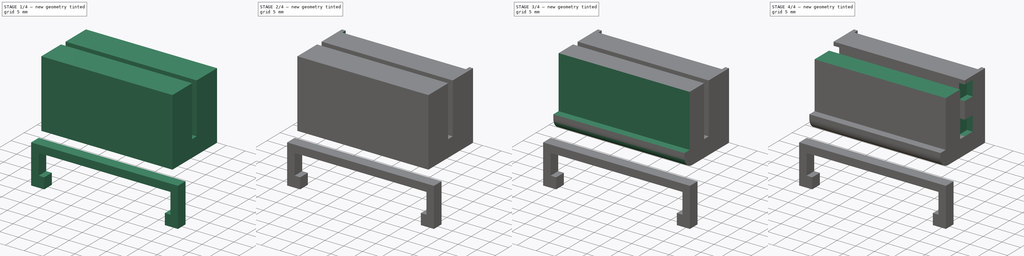
[diagram: build sequence overview — one tinted view per stage of 4, left to right]
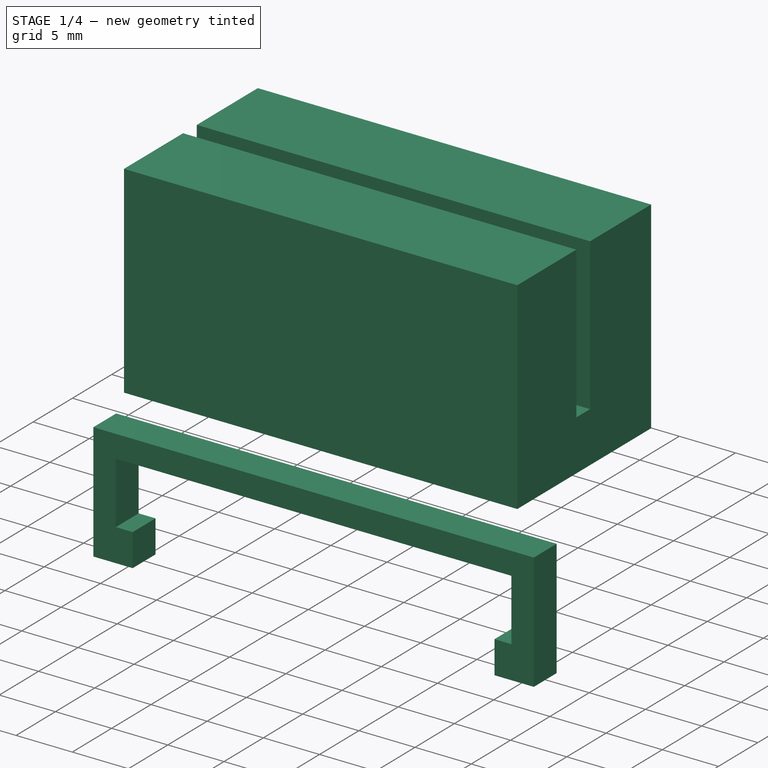
[diagram: stage 1 of 4 — iso view after this stage's code; geometry added in this stage tinted green]
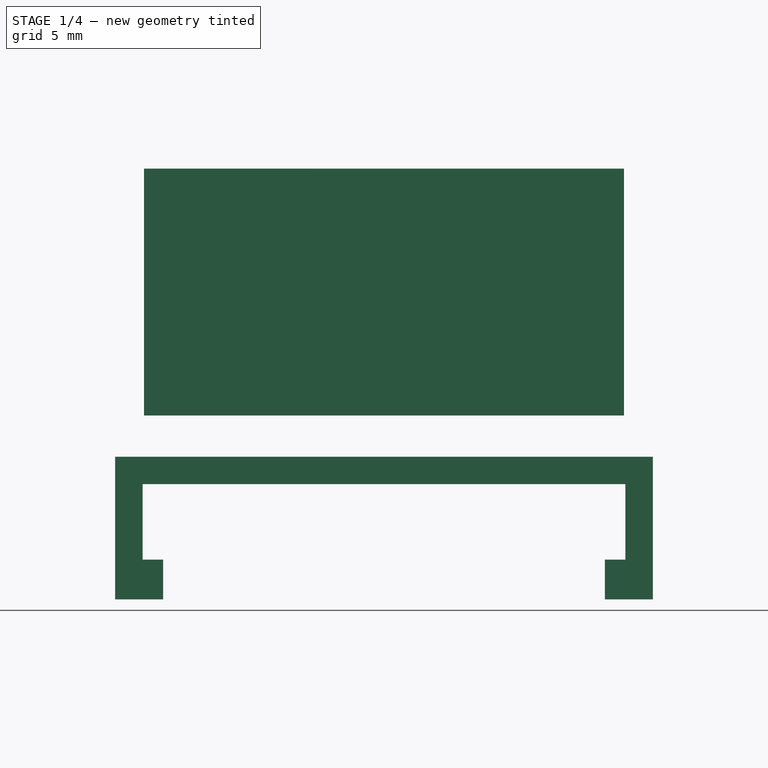
[diagram: stage 1 of 4 — front view after this stage's code; geometry added in this stage tinted green]
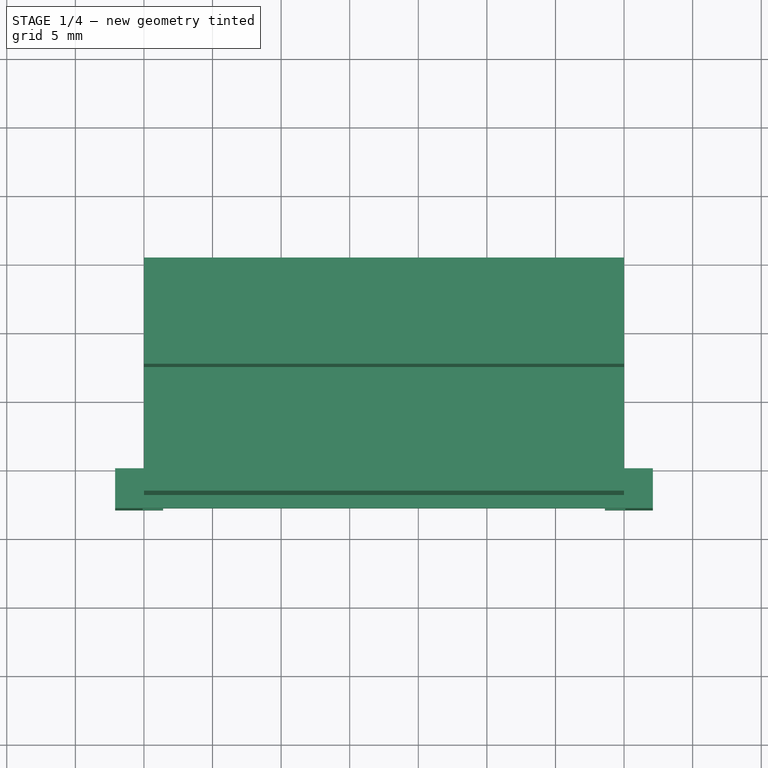
[diagram: stage 1 of 4 — top view after this stage's code; geometry added in this stage tinted green]
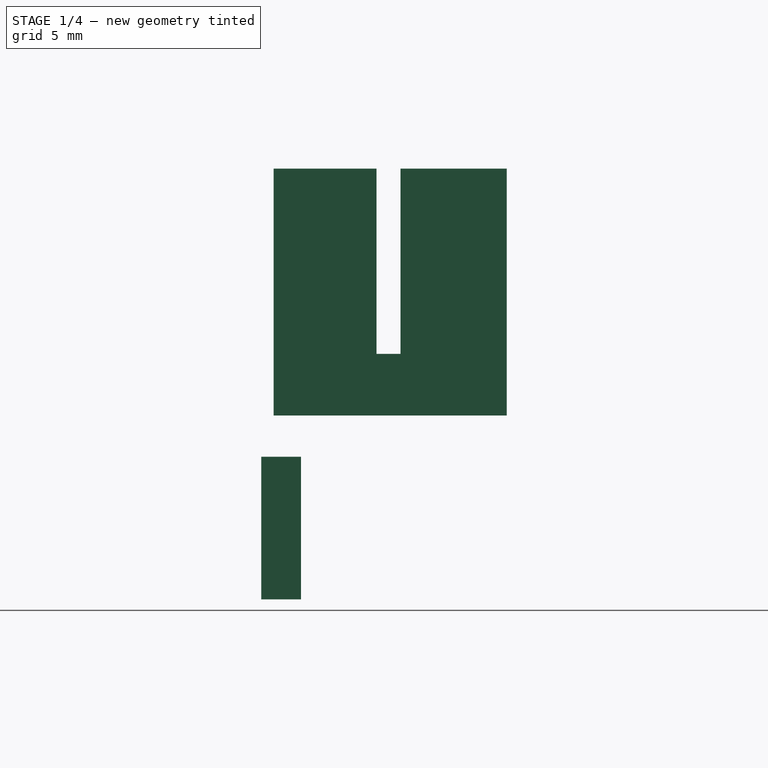
[diagram: stage 1 of 4 — right view after this stage's code; geometry added in this stage tinted green]
FCSTD DOCUMENT  (FreeCAD 0.21R33771 (Git))
Label: pivic_vic20_connector_adapter
License: All rights reserved
LicenseURL: http://en.wikipedia.org/wiki/All_rights_reserved
objects: Sketcher::SketchObject×12, PartDesign::Pocket×9, PartDesign::Plane×5, PartDesign::Pad×3, PartDesign::Body×2, PartDesign::Fillet×1
note: 45 computed .brp shape members not serialized (recipe doc carries the construction recipe); baked Part::Feature solids carry a one-line shape summary decoded from their .brp

FEATURE [Sketcher::SketchObject] Sketch
  FullyConstrained = true
  MapMode = 5
  Support = -> [XY_Plane]
  sketch-geometry (4):
    g0: LineSegment StartX=0 StartY=-2 StartZ=0 EndX=35 EndY=-2 EndZ=0
    g1: LineSegment StartX=35 StartY=-2 StartZ=0 EndX=35 EndY=15 EndZ=0
    g2: LineSegment StartX=35 StartY=15 StartZ=0 EndX=0 EndY=15 EndZ=0
    g3: LineSegment StartX=0 StartY=15 StartZ=0 EndX=0 EndY=-2 EndZ=0
  constraints (12):
    c: Coincident(g0,g1)
    c: Coincident(g1,g2)
    c: Coincident(g2,g3)
    c: Coincident(g3,g0)
    c: Horizontal(g0)
    c: Horizontal(g2)
    c: Vertical(g1)
    c: Vertical(g3)
    c: DistanceX(g2,g2) = 35
    c: DistanceY(g1,g1) = 17
    c: DistanceY(g0,g-1) = 2
    c: PointOnObject(g2,g-2)
FEATURE [PartDesign::Pad] Pad  label="PadMain"
  Direction = (0,0,1)
  Length = 18
  Length2 = 10
  Profile = -> Sketch
  ReferenceAxis = -> Sketch [N_Axis]
  Type = 0
FEATURE [PartDesign::Plane] DatumPlane  label="PlaneRear"
  Length = 70.9545
  MapMode = 5
  Placement = pos=(0,0,18) rot=(0,0,1;0rad)
  ResizeMode = 0
  Support = -> [Pad]
  Width = 60.9545
FEATURE [Sketcher::SketchObject] Sketch001
  FullyConstrained = true
  MapMode = 5
  Placement = pos=(0,0,18) rot=(0,0,1;0rad)
  Support = -> [DatumPlane]
  sketch-geometry (4):
    g0: LineSegment StartX=0 StartY=7.25 StartZ=0 EndX=35 EndY=7.25 EndZ=0
    g1: LineSegment StartX=35 StartY=7.25 StartZ=0 EndX=35 EndY=5.5 EndZ=0
    g2: LineSegment StartX=35 StartY=5.5 StartZ=0 EndX=0 EndY=5.5 EndZ=0
    g3: LineSegment StartX=0 StartY=5.5 StartZ=0 EndX=0 EndY=7.25 EndZ=0
  constraints (12):
    c: Coincident(g0,g1)
    c: Coincident(g1,g2)
    c: Coincident(g2,g3)
    c: Coincident(g3,g0)
    c: Horizontal(g0)
    c: Horizontal(g2)
    c: Vertical(g1)
    c: Vertical(g3)
    c: PointOnObject(g0,g-2)
    c: DistanceY(g1,g1) = 1.75
    c: DistanceX(g0,g0) = 35
    c: DistanceY(g-1,g2) = 5.5
FEATURE [PartDesign::Pocket] Pocket  label="PocketSlot"
  BaseFeature = -> Pad
  Direction = (0,0,-1)
  Length = 13.5
  Length2 = 5
  Profile = -> Sketch001
  ReferenceAxis = -> Sketch001 [N_Axis]
  Type = 0
FEATURE [PartDesign::Body] Body
  Group = -> [Sketch,Pad,DatumPlane,Sketch001,Pocket,DatumPlane001,Sketch002,Pocket001,Sketch003,Pocket002,DatumPlane002,Sketch004,Pad001,Sketch005,Pocket003,Sketch006,Pocket004,Sketch007,Pocket005,Fillet,Sketch008,Pocket006,DatumPlane003,Sketch009,Pocket007,DatumPlane004,Sketch010,Pocket008]
  Origin = -> Origin
  Tip = -> Pocket008
FEATURE [Sketcher::SketchObject] Sketch011
  FullyConstrained = true
  MapMode = 5
  Placement = pos=(0,0,0) rot=(1,0,0;1.5708rad)
  Support = -> [XZ_Plane]
  sketch-geometry (12):
    g0: LineSegment StartX=-0.1 StartY=-5 StartZ=0 EndX=35.1 EndY=-5 EndZ=0
    g1: LineSegment StartX=35.1 StartY=-5 StartZ=0 EndX=35.1 EndY=-10.5 EndZ=0
    g2: LineSegment StartX=35.1 StartY=-10.5 StartZ=0 EndX=33.6 EndY=-10.5 EndZ=0
    g3: LineSegment StartX=33.6 StartY=-10.5 StartZ=0 EndX=33.6 EndY=-13.4 EndZ=0
    g4: LineSegment StartX=33.6 StartY=-13.4 StartZ=0 EndX=37.1 EndY=-13.4 EndZ=0
    g5: LineSegment StartX=37.1 StartY=-13.4 StartZ=0 EndX=37.1 EndY=-3 EndZ=0
    g6: LineSegment StartX=37.1 StartY=-3 StartZ=0 EndX=-2.1 EndY=-3 EndZ=0
    g7: LineSegment StartX=-2.1 StartY=-3 StartZ=0 EndX=-2.1 EndY=-13.4 EndZ=0
    g8: LineSegment StartX=-2.1 StartY=-13.4 StartZ=0 EndX=1.4 EndY=-13.4 EndZ=0
    g9: LineSegment StartX=1.4 StartY=-13.4 StartZ=0 EndX=1.4 EndY=-10.5 EndZ=0
    g10: LineSegment StartX=1.4 StartY=-10.5 StartZ=0 EndX=-0.1 EndY=-10.5 EndZ=0
    g11: LineSegment StartX=-0.1 StartY=-10.5 StartZ=0 EndX=-0.1 EndY=-5 EndZ=0
  constraints (36):
    c: Coincident(g1,g0)
    c: Vertical(g1)
    c: Coincident(g2,g1)
    c: Horizontal(g2)
    c: Coincident(g3,g2)
    c: Vertical(g3)
    c: Coincident(g4,g3)
    c: Horizontal(g4)
    c: Coincident(g5,g4)
    c: Vertical(g5)
    c: Coincident(g6,g5)
    c: Horizontal(g6)
    c: Coincident(g7,g6)
    c: Vertical(g7)
    c: Coincident(g8,g7)
    c: Horizontal(g8)
    c: Coincident(g9,g8)
    c: Vertical(g9)
    c: Coincident(g10,g9)
    c: Horizontal(g10)
    c: DistanceX(g0,g0) = 35.2
    c: DistanceY(g3,g3) = 2.9
    c: DistanceX(g2,g2) = 1.5
    c: DistanceX(g1,g4) = 2
    c: DistanceY(g0,g5) = 2
    c: DistanceY(g1,g1) = 5.5
    c: Equal(g9,g3)
    c: Equal(g10,g2)
    c: DistanceX(g7,g10) = 2
    c: Coincident(g11,g10)
    c: Coincident(g11,g0)
    c: DistanceY(g10,g0) = 5.5
    c: Horizontal(g0)
    c: DistanceY(g6,g-1) = 3
    c: DistanceX(g6,g-1) = 2.1
    c: Vertical(g11)
FEATURE [PartDesign::Pad] Pad002
  Direction = (0,-1,-2e-16)
  Length = 2.9
  Length2 = 10
  Placement = pos=(0,0,0) rot=(1,0,0;1.5708rad)
  Profile = -> Sketch011
  ReferenceAxis = -> Sketch011 [N_Axis]
  Type = 0
FEATURE [PartDesign::Body] Body001  label="BodyLatch"
  Group = -> [Sketch011,Pad002]
  Origin = -> Origin001
  Tip = -> Pad002
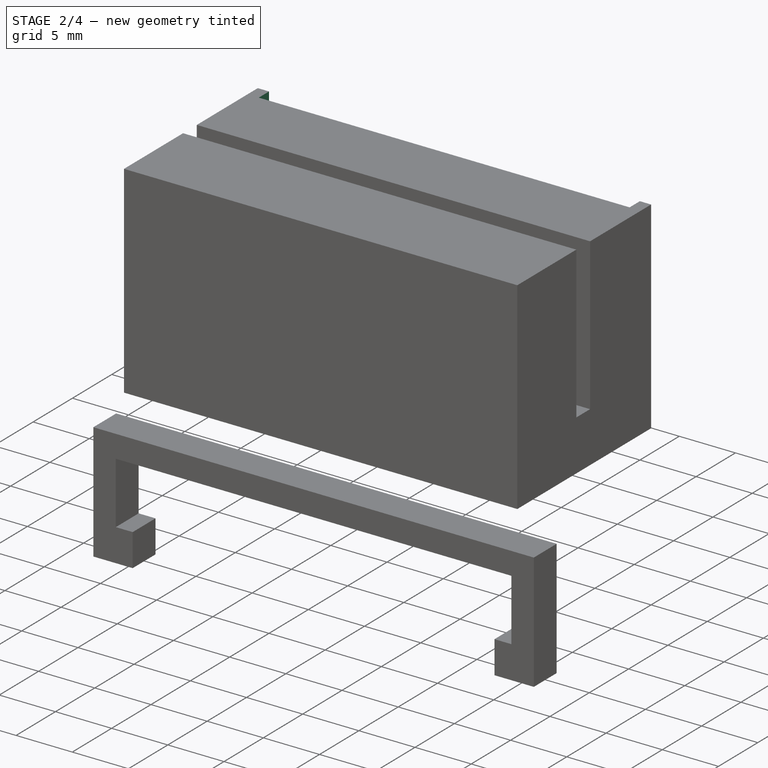
[diagram: stage 2 of 4 — iso view after this stage's code; geometry added in this stage tinted green]
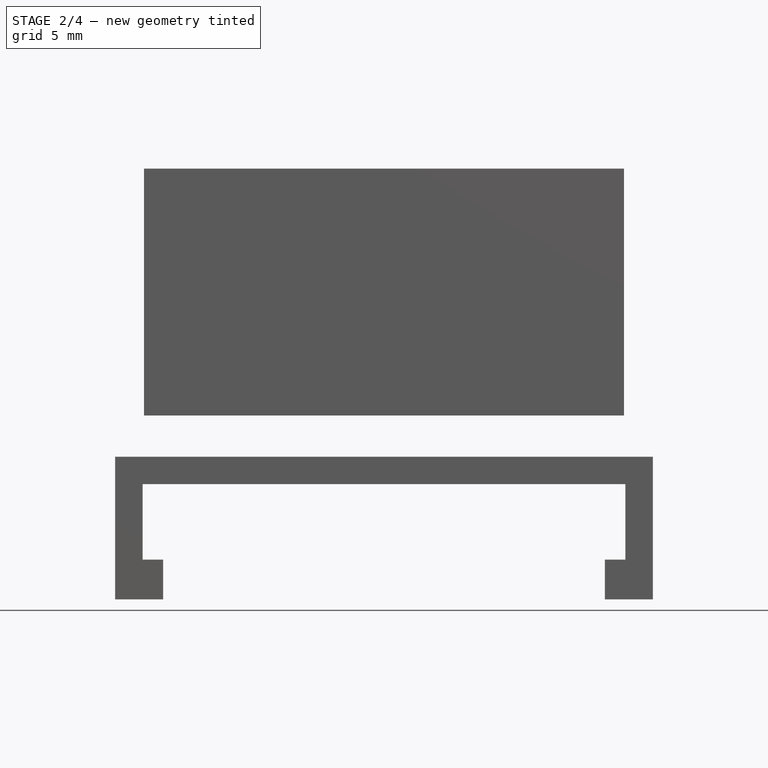
[diagram: stage 2 of 4 — front view after this stage's code; geometry added in this stage tinted green]
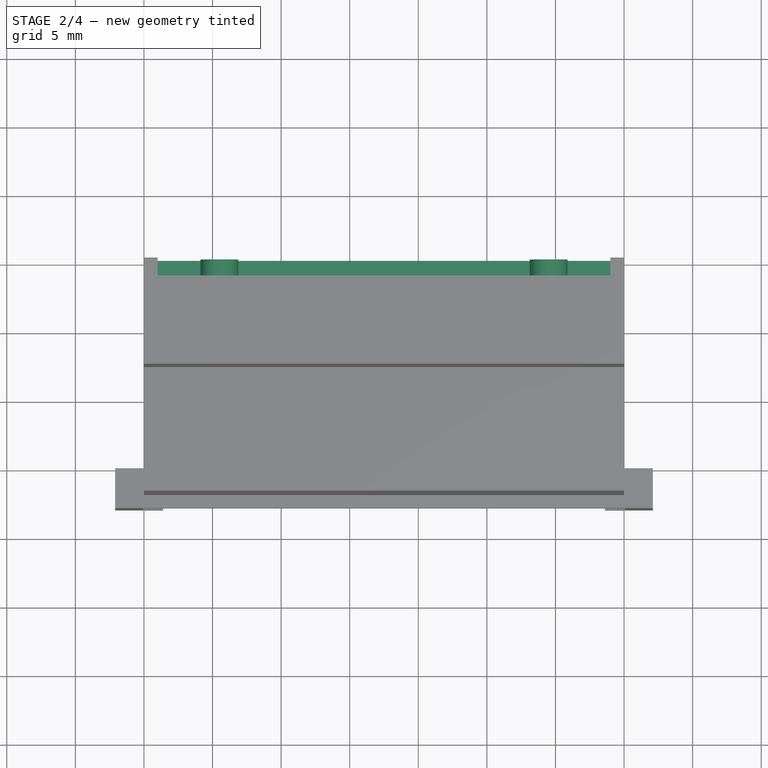
[diagram: stage 2 of 4 — top view after this stage's code; geometry added in this stage tinted green]
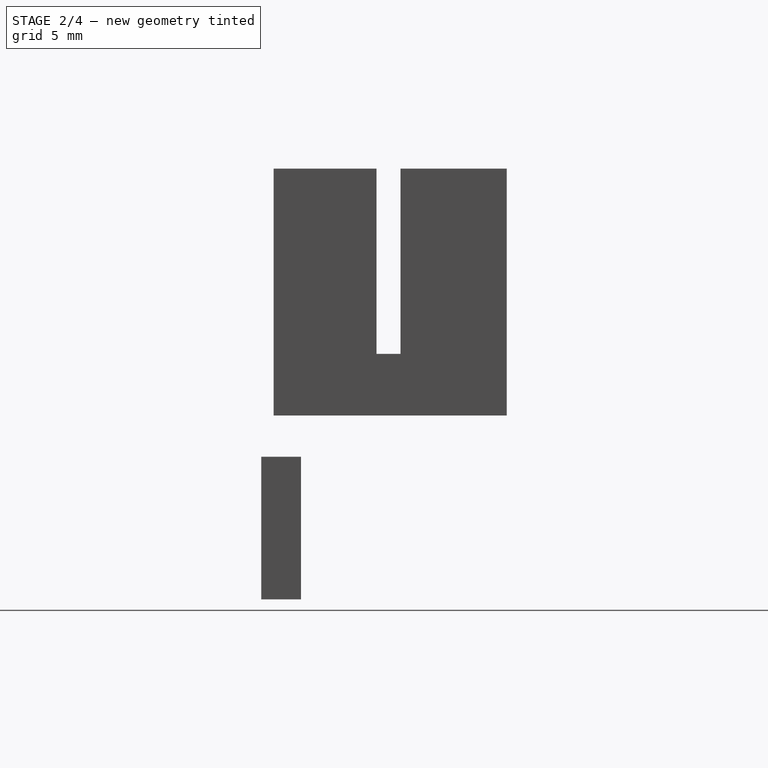
[diagram: stage 2 of 4 — right view after this stage's code; geometry added in this stage tinted green]
FEATURE [PartDesign::Plane] DatumPlane001  label="PlaneFront"
  Length = 70.9545
  MapMode = 5
  Placement = pos=(0,0,0) rot=(1,0,0;3.14159rad)
  ResizeMode = 0
  Support = -> [Pocket]
  Width = 60.9545
FEATURE [Sketcher::SketchObject] Sketch002
  FullyConstrained = true
  MapMode = 5
  Placement = pos=(0,0,0) rot=(1,0,0;3.14159rad)
  Support = -> [DatumPlane001]
  sketch-geometry (6):
    g0: LineSegment StartX=11.5 StartY=-13.7 StartZ=0 EndX=23.5 EndY=-13.7 EndZ=0
    g1: LineSegment StartX=25 StartY=-11.7 StartZ=0 EndX=25 EndY=-7.7 EndZ=0
    g2: LineSegment StartX=25 StartY=-7.7 StartZ=0 EndX=10 EndY=-7.7 EndZ=0
    g3: LineSegment StartX=10 StartY=-7.7 StartZ=0 EndX=10 EndY=-11.7 EndZ=0
    g4: LineSegment StartX=10 StartY=-11.7 StartZ=0 EndX=11.5 EndY=-13.7 EndZ=0
    g5: LineSegment StartX=25 StartY=-11.7 StartZ=0 EndX=23.5 EndY=-13.7 EndZ=0
  constraints (18):
    c: Coincident(g1,g2)
    c: Coincident(g2,g3)
    c: Horizontal(g0)
    c: Horizontal(g2)
    c: Vertical(g1)
    c: Vertical(g3)
    c: DistanceX(g2,g2) = 15
    c: DistanceX(g0,g0) = 12
    c: DistanceY(g1,g1) = 4
    c: DistanceY(g0,g1) = 6
    c: Equal(g1,g3)
    c: Coincident(g4,g3)
    c: Coincident(g4,g0)
    c: Coincident(g5,g1)
    c: Coincident(g5,g0)
    c: DistanceX(g3,g0) = 1.5
    c: DistanceY(g2,g-1) = 7.7
    c: DistanceX(g-1,g2) = 10
FEATURE [PartDesign::Pocket] Pocket001  label="PocketConnector"
  BaseFeature = -> Pocket
  Direction = (0,0,1)
  Length = 15
  Length2 = 5
  Profile = -> Sketch002
  ReferenceAxis = -> Sketch002 [N_Axis]
  Type = 0
FEATURE [Sketcher::SketchObject] Sketch003
  FullyConstrained = true
  MapMode = 5
  Placement = pos=(0,0,18) rot=(0,0,1;0rad)
  Support = -> [DatumPlane]
  sketch-geometry (4):
    g0: LineSegment StartX=1 StartY=15 StartZ=0 EndX=34 EndY=15 EndZ=0
    g1: LineSegment StartX=34 StartY=15 StartZ=0 EndX=34 EndY=13.7 EndZ=0
    g2: LineSegment StartX=34 StartY=13.7 StartZ=0 EndX=1 EndY=13.7 EndZ=0
    g3: LineSegment StartX=1 StartY=13.7 StartZ=0 EndX=1 EndY=15 EndZ=0
  constraints (12):
    c: Coincident(g0,g1)
    c: Coincident(g1,g2)
    c: Coincident(g2,g3)
    c: Coincident(g3,g0)
    c: Horizontal(g0)
    c: Horizontal(g2)
    c: Vertical(g1)
    c: Vertical(g3)
    c: DistanceX(g0,g0) = 33
    c: DistanceY(g-1,g0) = 15
    c: DistanceY(g1,g1) = 1.3
    c: DistanceX(g-1,g2) = 1
FEATURE [PartDesign::Pocket] Pocket002  label="PocketPCB"
  BaseFeature = -> Pocket001
  Direction = (0,0,-1)
  Length = 14
  Length2 = 5
  Profile = -> Sketch003
  ReferenceAxis = -> Sketch003 [N_Axis]
  Type = 0
FEATURE [PartDesign::Plane] DatumPlane002  label="PlanePCB"
  Length = 70.9545
  MapMode = 5
  Placement = pos=(0,15,0) rot=(0,0.707107,0.707107;3.14159rad)
  ResizeMode = 0
  Support = -> [Pocket002]
  Width = 60.9545
FEATURE [Sketcher::SketchObject] Sketch004
  FullyConstrained = true
  MapMode = 5
  Placement = pos=(0,15,0) rot=(0,0.707107,0.707107;3.14159rad)
  Support = -> [DatumPlane002]
  sketch-geometry (3):
    g0: Circle CenterX=-29.5 CenterY=9 CenterZ=0 NormalX=0 NormalY=0 NormalZ=1 AngleXU=0 Radius=1.375
    g1: Circle CenterX=-5.5 CenterY=9 CenterZ=0 NormalX=0 NormalY=0 NormalZ=1 AngleXU=0 Radius=1.375
    g2: GeomPoint X=-17.5 Y=9 Z=0
  constraints (8):
    c: Diameter(g0) = 2.75
    c: Equal(g0,g1)
    c: DistanceX(g0,g1) = 24
    c: Horizontal(g0,g1)
    c: DistanceY(g-1,g1) = 9
    c: DistanceX(g0,g2) = 12
    c: Horizontal(g0,g2)
    c: DistanceX(g2,g-1) = 17.5
FEATURE [PartDesign::Pad] Pad001  label="PadHolders"
  BaseFeature = -> Pocket002
  Direction = (0,1,-2e-16)
  Length = 1.5
  Length2 = 10
  Profile = -> Sketch004
  ReferenceAxis = -> Sketch004 [N_Axis]
  Reversed = true
  Type = 0
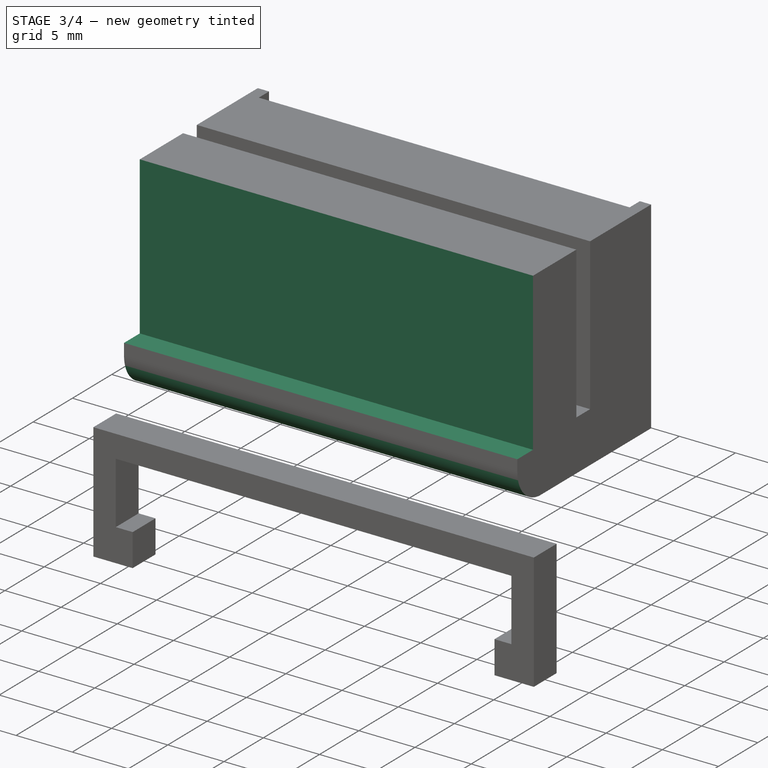
[diagram: stage 3 of 4 — iso view after this stage's code; geometry added in this stage tinted green]
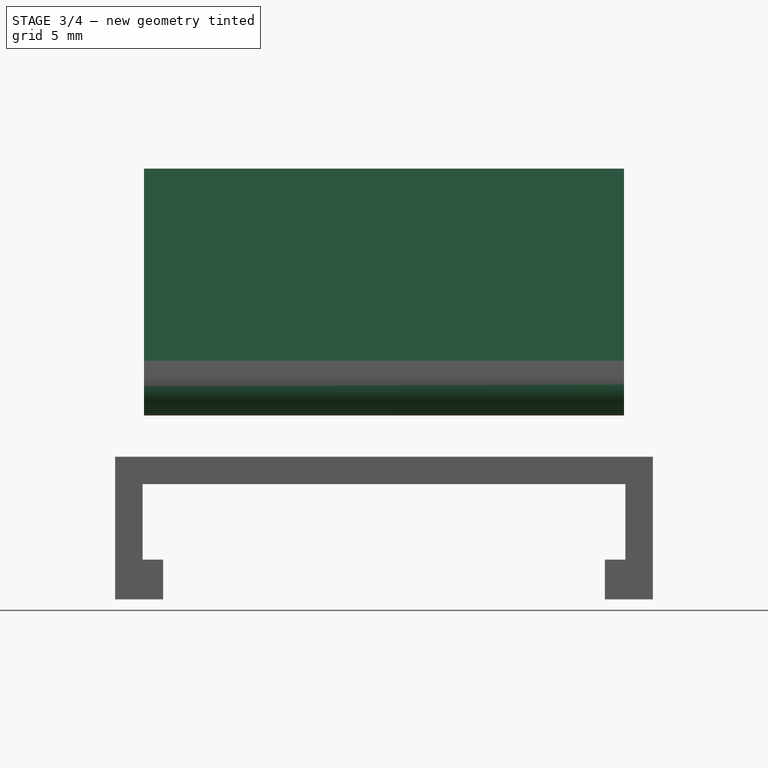
[diagram: stage 3 of 4 — front view after this stage's code; geometry added in this stage tinted green]
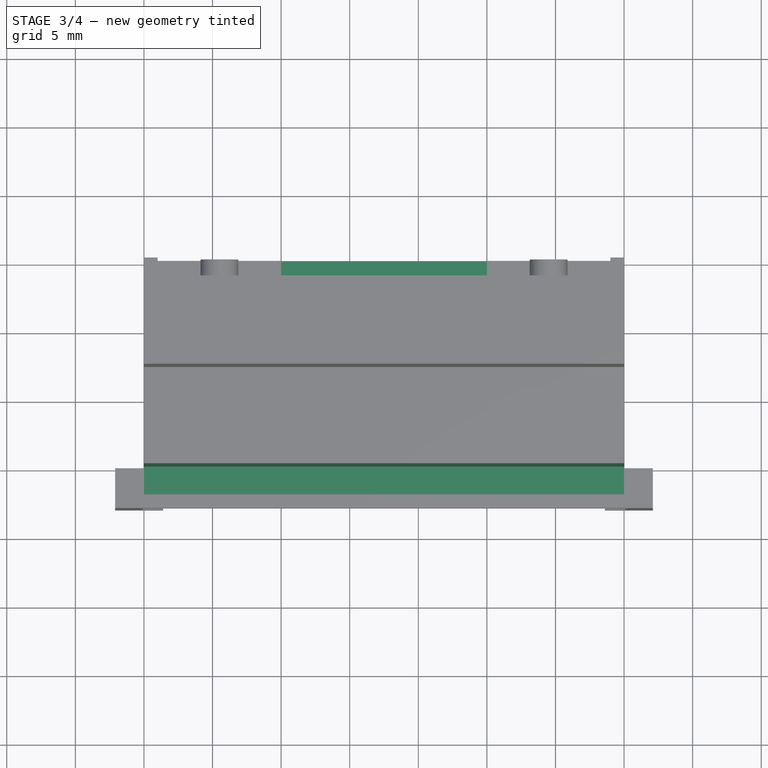
[diagram: stage 3 of 4 — top view after this stage's code; geometry added in this stage tinted green]
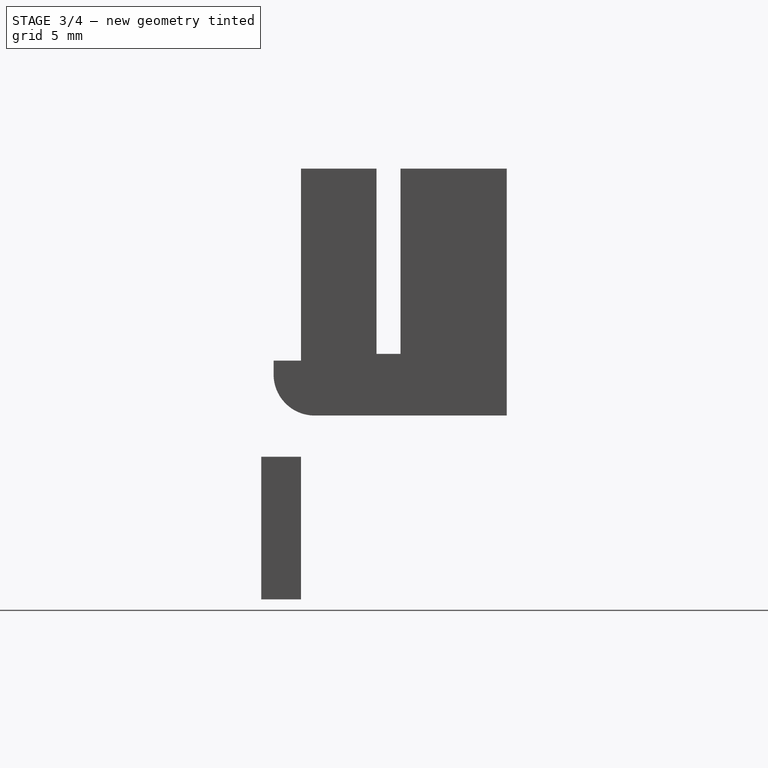
[diagram: stage 3 of 4 — right view after this stage's code; geometry added in this stage tinted green]
FEATURE [Sketcher::SketchObject] Sketch005
  FullyConstrained = true
  MapMode = 5
  Placement = pos=(0,15,0) rot=(0,0.707107,0.707107;3.14159rad)
  Support = -> [DatumPlane002]
  sketch-geometry (5):
    g0: LineSegment StartX=-25 StartY=15 StartZ=0 EndX=-10 EndY=15 EndZ=0
    g1: LineSegment StartX=-10 StartY=15 StartZ=0 EndX=-10 EndY=3 EndZ=0
    g2: LineSegment StartX=-10 StartY=3 StartZ=0 EndX=-25 EndY=3 EndZ=0
    g3: LineSegment StartX=-25 StartY=3 StartZ=0 EndX=-25 EndY=15 EndZ=0
    g4: GeomPoint X=-17.5 Y=3 Z=0
  constraints (13):
    c: Coincident(g0,g1)
    c: Coincident(g1,g2)
    c: Coincident(g2,g3)
    c: Coincident(g3,g0)
    c: Horizontal(g0)
    c: Horizontal(g2)
    c: Vertical(g1)
    c: Vertical(g3)
    c: DistanceX(g0,g0) = 15
    c: Symmetric(g2,g1,g4)
    c: DistanceX(g4,g-1) = 17.5
    c: DistanceY(g-1,g1) = 3
    c: DistanceY(g1,g1) = 12
FEATURE [PartDesign::Pocket] Pocket003  label="PocketRoom"
  BaseFeature = -> Pad001
  Direction = (0,-1,2e-16)
  Length = 4
  Length2 = 5
  Profile = -> Sketch005
  ReferenceAxis = -> Sketch005 [N_Axis]
  Type = 0
FEATURE [Sketcher::SketchObject] Sketch006
  FullyConstrained = true
  MapMode = 5
  Placement = pos=(0,0,18) rot=(0,0,1;0rad)
  Support = -> [DatumPlane]
  sketch-geometry (4):
    g0: LineSegment StartX=0 StartY=0 StartZ=0 EndX=35 EndY=0 EndZ=0
    g1: LineSegment StartX=35 StartY=0 StartZ=0 EndX=35 EndY=-2 EndZ=0
    g2: LineSegment StartX=35 StartY=-2 StartZ=0 EndX=0 EndY=-2 EndZ=0
    g3: LineSegment StartX=0 StartY=-2 StartZ=0 EndX=0 EndY=0 EndZ=0
  constraints (11):
    c: Coincident(g0,g1)
    c: Coincident(g1,g2)
    c: Coincident(g2,g3)
    c: Coincident(g3,g0)
    c: Horizontal(g0)
    c: Horizontal(g2)
    c: Vertical(g1)
    c: Vertical(g3)
    c: Coincident(g0,g-1)
    c: DistanceX(g2,g2) = 35
    c: DistanceY(g1,g1) = 2
FEATURE [PartDesign::Pocket] Pocket004  label="PocketUndercut"
  BaseFeature = -> Pocket003
  Direction = (0,0,-1)
  Length = 14
  Length2 = 5
  Profile = -> Sketch006
  ReferenceAxis = -> Sketch006 [N_Axis]
  Type = 0
FEATURE [Sketcher::SketchObject] Sketch007
  FullyConstrained = true
  MapMode = 5
  Placement = pos=(0,15,0) rot=(0,0.707107,0.707107;3.14159rad)
  Support = -> [DatumPlane002]
  sketch-geometry (5):
    g0: LineSegment StartX=-26.5 StartY=4 StartZ=0 EndX=-8.5 EndY=4 EndZ=0
    g1: LineSegment StartX=-8.5 StartY=4 StartZ=0 EndX=-8.5 EndY=18 EndZ=0
    g2: LineSegment StartX=-8.5 StartY=18 StartZ=0 EndX=-26.5 EndY=18 EndZ=0
    g3: LineSegment StartX=-26.5 StartY=18 StartZ=0 EndX=-26.5 EndY=4 EndZ=0
    g4: GeomPoint X=-17.5 Y=4 Z=0
  constraints (13):
    c: Coincident(g0,g1)
    c: Coincident(g1,g2)
    c: Coincident(g2,g3)
    c: Coincident(g3,g0)
    c: Horizontal(g0)
    c: Horizontal(g2)
    c: Vertical(g1)
    c: Vertical(g3)
    c: Symmetric(g0,g0,g4)
    c: DistanceX(g4,g-1) = 17.5
    c: DistanceX(g2,g2) = 18
    c: DistanceY(g3,g3) = 14
    c: DistanceY(g-1,g0) = 4
FEATURE [PartDesign::Pocket] Pocket005  label="PocketClearance"
  BaseFeature = -> Pocket004
  Direction = (0,-1,2e-16)
  Length = 0.5
  Length2 = 5
  Profile = -> Sketch007
  ReferenceAxis = -> Sketch007 [N_Axis]
  Type = 0
FEATURE [PartDesign::Fillet] Fillet
  Base = -> Pocket005 [Edge1]
  BaseFeature = -> Pocket005
  Radius = 3
  SupportTransform = false
  UseAllEdges = false
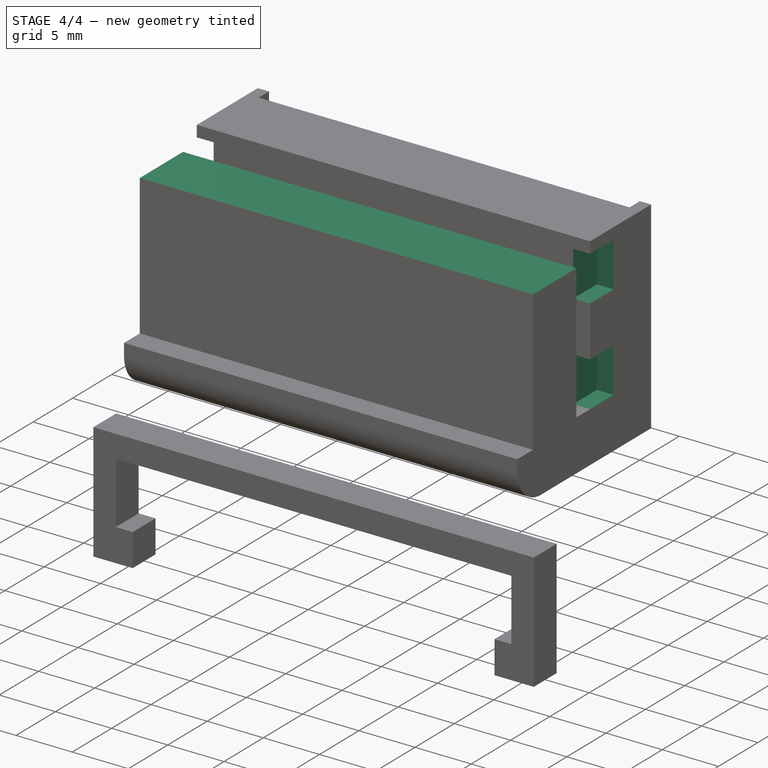
[diagram: stage 4 of 4 — iso view after this stage's code; geometry added in this stage tinted green]
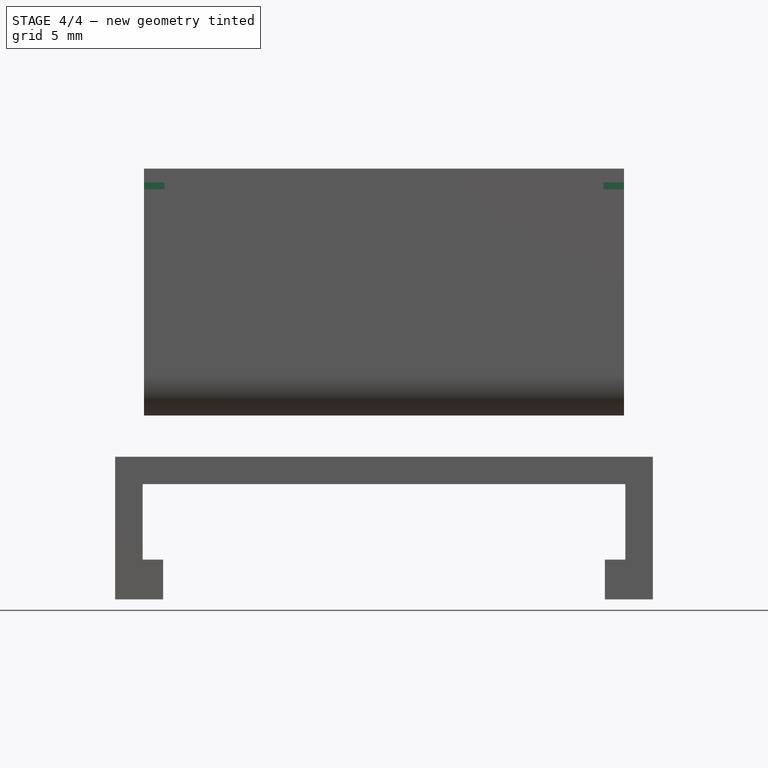
[diagram: stage 4 of 4 — front view after this stage's code; geometry added in this stage tinted green]
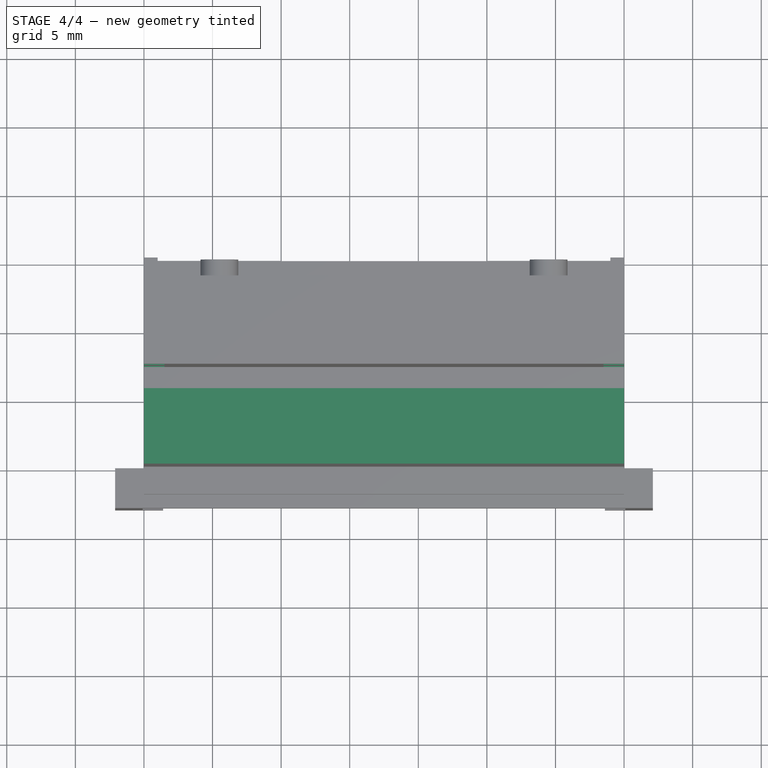
[diagram: stage 4 of 4 — top view after this stage's code; geometry added in this stage tinted green]
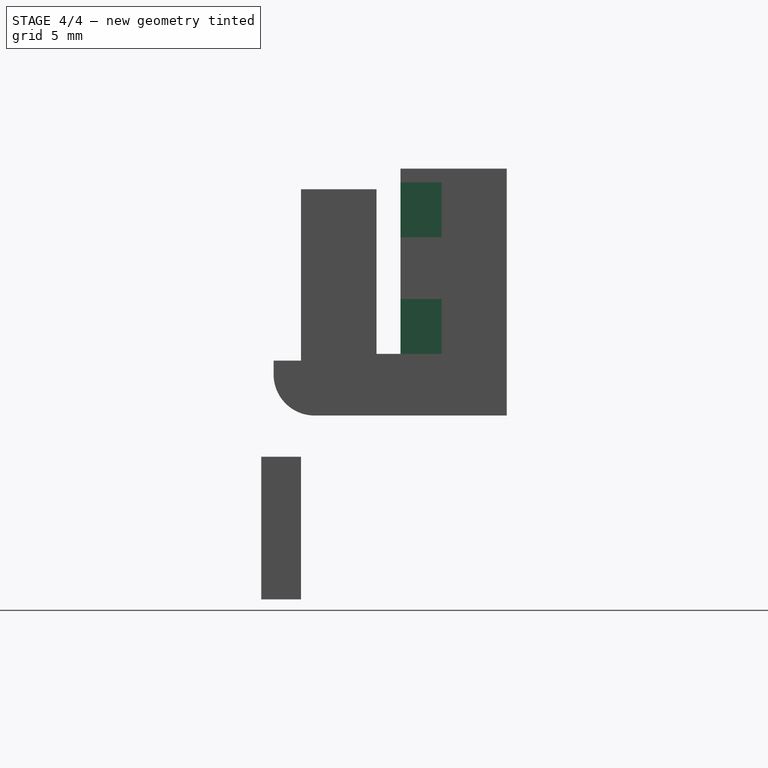
[diagram: stage 4 of 4 — right view after this stage's code; geometry added in this stage tinted green]
FEATURE [Sketcher::SketchObject] Sketch008
  FullyConstrained = true
  MapMode = 5
  Placement = pos=(0,0,18) rot=(0,0,1;0rad)
  Support = -> [DatumPlane]
  sketch-geometry (4):
    g0: LineSegment StartX=0 StartY=0 StartZ=0 EndX=35 EndY=0 EndZ=0
    g1: LineSegment StartX=35 StartY=0 StartZ=0 EndX=35 EndY=5.5 EndZ=0
    g2: LineSegment StartX=35 StartY=5.5 StartZ=0 EndX=0 EndY=5.5 EndZ=0
    g3: LineSegment StartX=0 StartY=5.5 StartZ=0 EndX=0 EndY=0 EndZ=0
  constraints (11):
    c: Coincident(g0,g1)
    c: Coincident(g1,g2)
    c: Coincident(g2,g3)
    c: Coincident(g3,g0)
    c: Horizontal(g0)
    c: Horizontal(g2)
    c: Vertical(g1)
    c: Vertical(g3)
    c: Coincident(g0,g-1)
    c: DistanceX(g2,g2) = 35
    c: DistanceY(g1,g1) = 5.5
FEATURE [PartDesign::Pocket] Pocket006
  BaseFeature = -> Fillet
  Direction = (0,0,-1)
  Length = 1.5
  Length2 = 5
  Profile = -> Sketch008
  ReferenceAxis = -> Sketch008 [N_Axis]
  Type = 0
FEATURE [PartDesign::Plane] DatumPlane003  label="DatumPlaneSide"
  Length = 60
  MapMode = 5
  Placement = pos=(0,0,0) rot=(0.57735,0.57735,0.57735;2.0944rad)
  ResizeMode = 0
  Support = -> [YZ_Plane]
  Width = 60
FEATURE [Sketcher::SketchObject] Sketch009
  FullyConstrained = true
  MapMode = 5
  Placement = pos=(0,0,0) rot=(0.57735,0.57735,0.57735;2.0944rad)
  Support = -> [DatumPlane003]
  sketch-geometry (8):
    g0: LineSegment StartX=7.25 StartY=17 StartZ=0 EndX=10.25 EndY=17 EndZ=0
    g1: LineSegment StartX=10.25 StartY=17 StartZ=0 EndX=10.25 EndY=13 EndZ=0
    g2: LineSegment StartX=10.25 StartY=13 StartZ=0 EndX=7.25 EndY=13 EndZ=0
    g3: LineSegment StartX=7.25 StartY=13 StartZ=0 EndX=7.25 EndY=17 EndZ=0
    g4: LineSegment StartX=7.25 StartY=4.5 StartZ=0 EndX=10.25 EndY=4.5 EndZ=0
    g5: LineSegment StartX=10.25 StartY=4.5 StartZ=0 EndX=10.25 EndY=8.5 EndZ=0
    g6: LineSegment StartX=10.25 StartY=8.5 StartZ=0 EndX=7.25 EndY=8.5 EndZ=0
    g7: LineSegment StartX=7.25 StartY=8.5 StartZ=0 EndX=7.25 EndY=4.5 EndZ=0
  constraints (24):
    c: Coincident(g0,g1)
    c: Coincident(g1,g2)
    c: Coincident(g2,g3)
    c: Coincident(g3,g0)
    c: Horizontal(g0)
    c: Horizontal(g2)
    c: Vertical(g1)
    c: Vertical(g3)
    c: DistanceY(g-1,g0) = 17
    c: DistanceX(g0,g0) = 3
    c: DistanceY(g1,g1) = 4
    c: DistanceX(g-1,g0) = 7.25
    c: Coincident(g4,g5)
    c: Coincident(g5,g6)
    c: Coincident(g6,g7)
    c: Coincident(g7,g4)
    c: Horizontal(g4)
    c: Horizontal(g6)
    c: Vertical(g5)
    c: Vertical(g7)
    c: DistanceX(g6,g6) = 3
    c: DistanceY(g5,g5) = 4
    c: Vertical(g2,g6)
    c: DistanceY(g-1,g4) = 4.5
FEATURE [PartDesign::Pocket] Pocket007
  BaseFeature = -> Pocket006
  Direction = (-1,1e-16,-1e-16)
  Length = 1.5
  Length2 = 5
  Profile = -> Sketch009
  ReferenceAxis = -> Sketch009 [N_Axis]
  Reversed = true
  Type = 0
FEATURE [PartDesign::Plane] DatumPlane004  label="DatumSide2"
  Length = 60
  MapMode = 5
  Placement = pos=(35,0,0) rot=(0.57735,0.57735,0.57735;2.0944rad)
  ResizeMode = 0
  Support = -> [Pad]
  Width = 60
FEATURE [Sketcher::SketchObject] Sketch010
  FullyConstrained = true
  MapMode = 5
  Placement = pos=(35,0,0) rot=(0.57735,0.57735,0.57735;2.0944rad)
  Support = -> [DatumPlane004]
  sketch-geometry (8):
    g0: LineSegment StartX=7.25 StartY=17 StartZ=0 EndX=10.25 EndY=17 EndZ=0
    g1: LineSegment StartX=10.25 StartY=17 StartZ=0 EndX=10.25 EndY=13 EndZ=0
    g2: LineSegment StartX=10.25 StartY=13 StartZ=0 EndX=7.25 EndY=13 EndZ=0
    g3: LineSegment StartX=7.25 StartY=13 StartZ=0 EndX=7.25 EndY=17 EndZ=0
    g4: LineSegment StartX=7.25 StartY=4.5 StartZ=0 EndX=10.25 EndY=4.5 EndZ=0
    g5: LineSegment StartX=10.25 StartY=4.5 StartZ=0 EndX=10.25 EndY=8.5 EndZ=0
    g6: LineSegment StartX=10.25 StartY=8.5 StartZ=0 EndX=7.25 EndY=8.5 EndZ=0
    g7: LineSegment StartX=7.25 StartY=8.5 StartZ=0 EndX=7.25 EndY=4.5 EndZ=0
  constraints (24):
    c: Coincident(g0,g1)
    c: Coincident(g1,g2)
    c: Coincident(g2,g3)
    c: Coincident(g3,g0)
    c: Horizontal(g0)
    c: Horizontal(g2)
    c: Vertical(g1)
    c: Vertical(g3)
    c: DistanceX(g2,g2) = 3
    c: DistanceY(g1,g1) = 4
    c: DistanceY(g-1,g0) = 17
    c: DistanceX(g-1,g0) = 7.25
    c: Coincident(g4,g5)
    c: Coincident(g5,g6)
    c: Coincident(g6,g7)
    c: Coincident(g7,g4)
    c: Horizontal(g4)
    c: Horizontal(g6)
    c: Vertical(g5)
    c: Vertical(g7)
    c: DistanceX(g6,g6) = 3
    c: DistanceX(g-1,g6) = 7.25
    c: DistanceY(g-1,g4) = 4.5
    c: DistanceY(g5,g5) = 4
FEATURE [PartDesign::Pocket] Pocket008
  BaseFeature = -> Pocket007
  Direction = (-1,0,0)
  Length = 1.5
  Length2 = 5
  Profile = -> Sketch010
  ReferenceAxis = -> Sketch010 [N_Axis]
  Type = 0
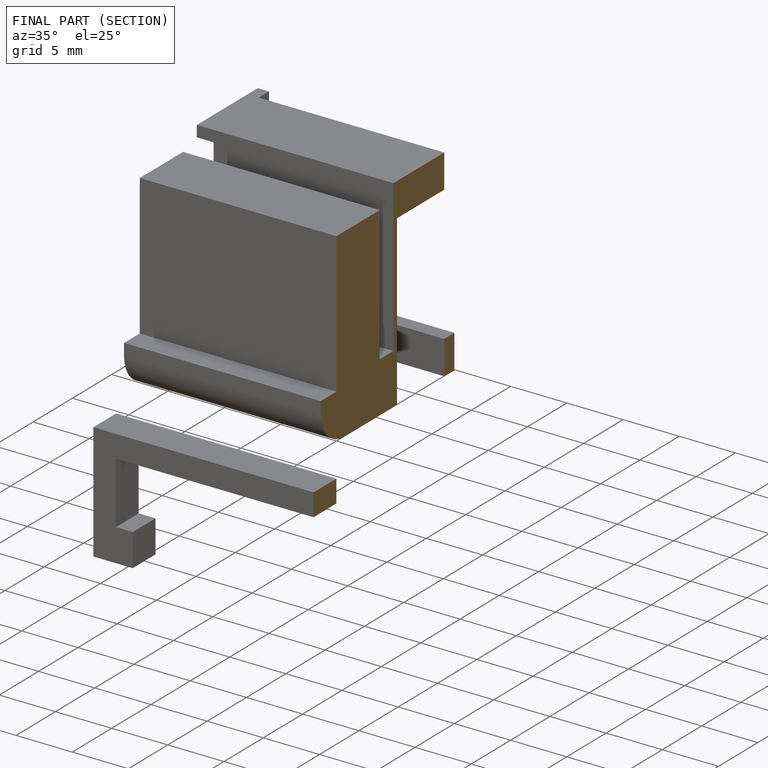
[diagram: finished part — half-section view (interior)]
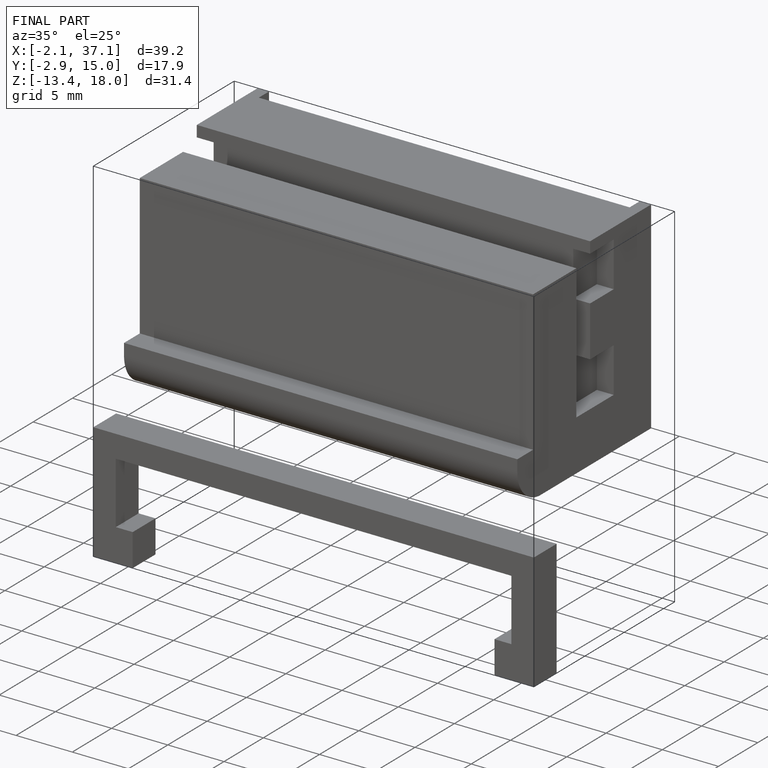
[diagram: finished part — iso view with bounding-box wireframe]
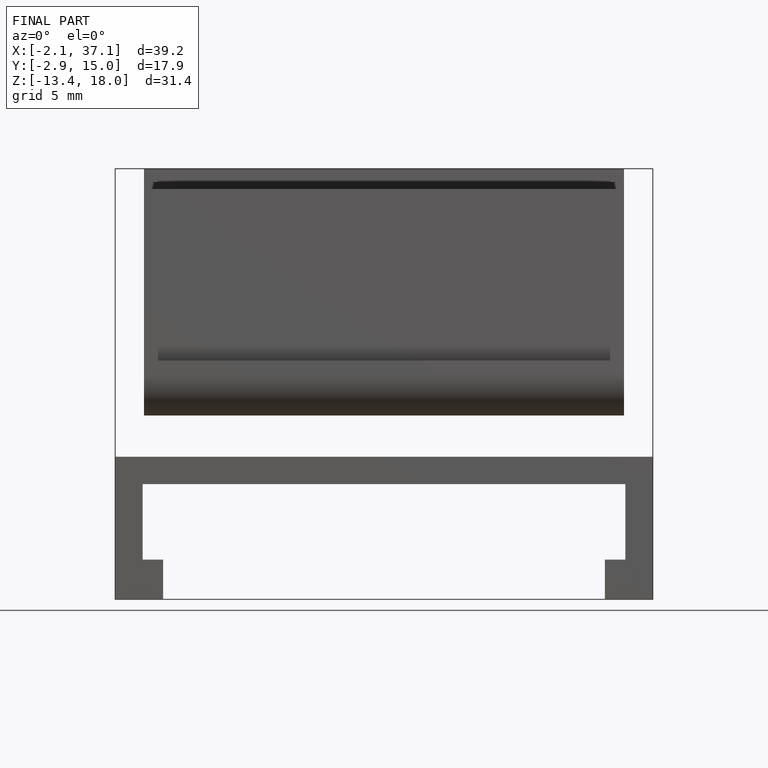
[diagram: finished part — front view with bounding-box wireframe]
